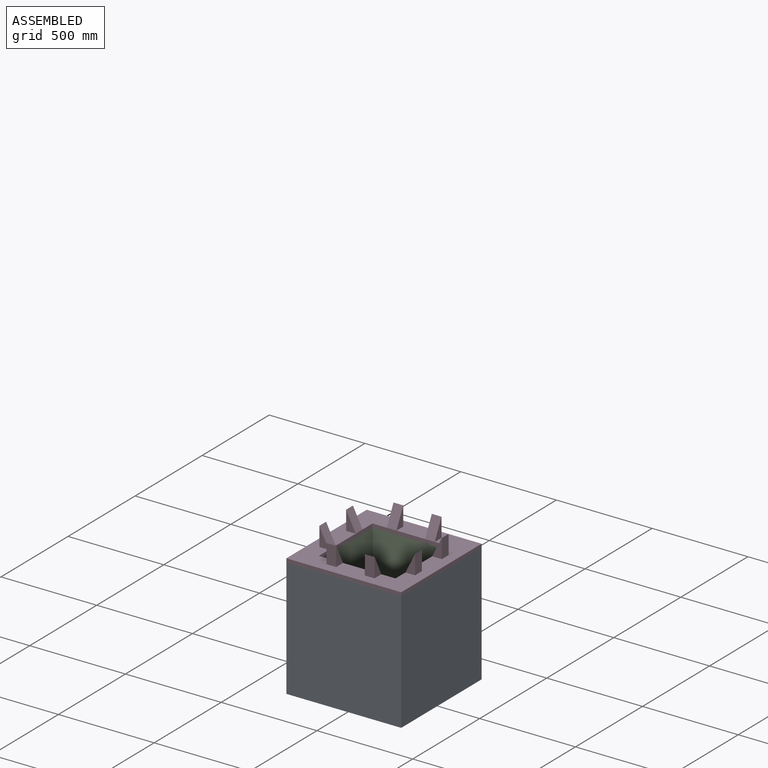
[diagram: assembled view]
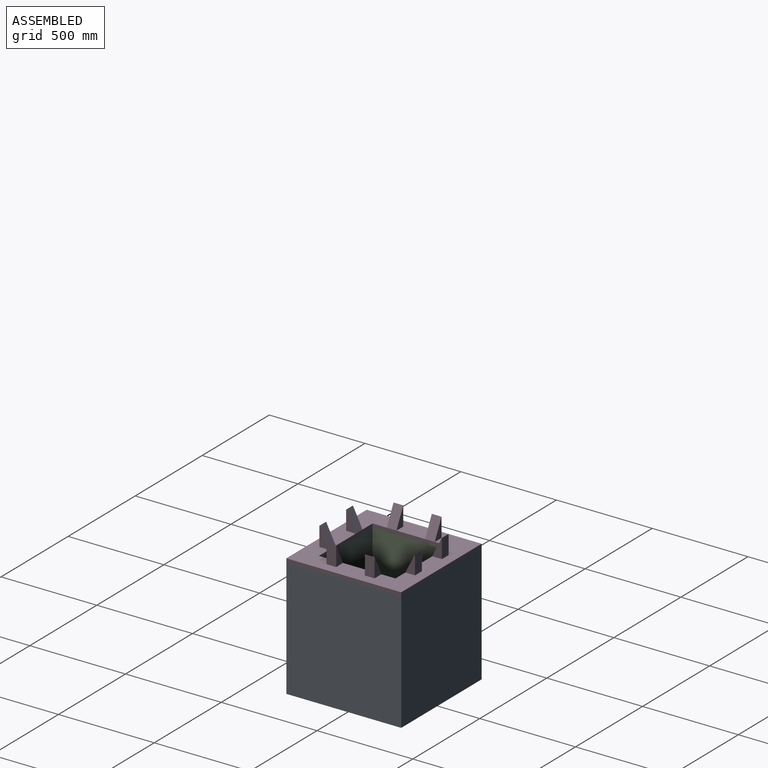
[diagram: assembled view, second angle]
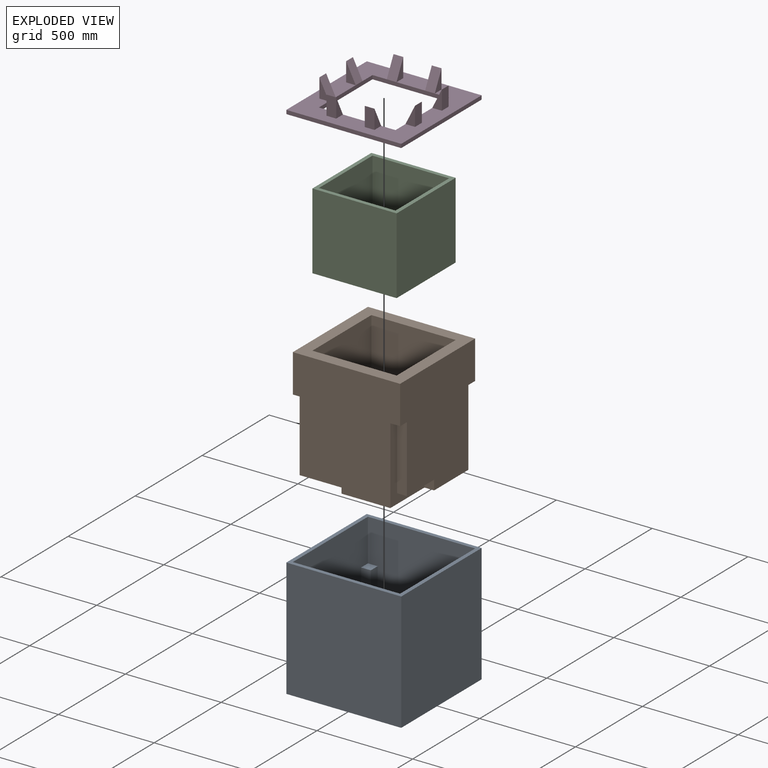
[diagram: exploded view]
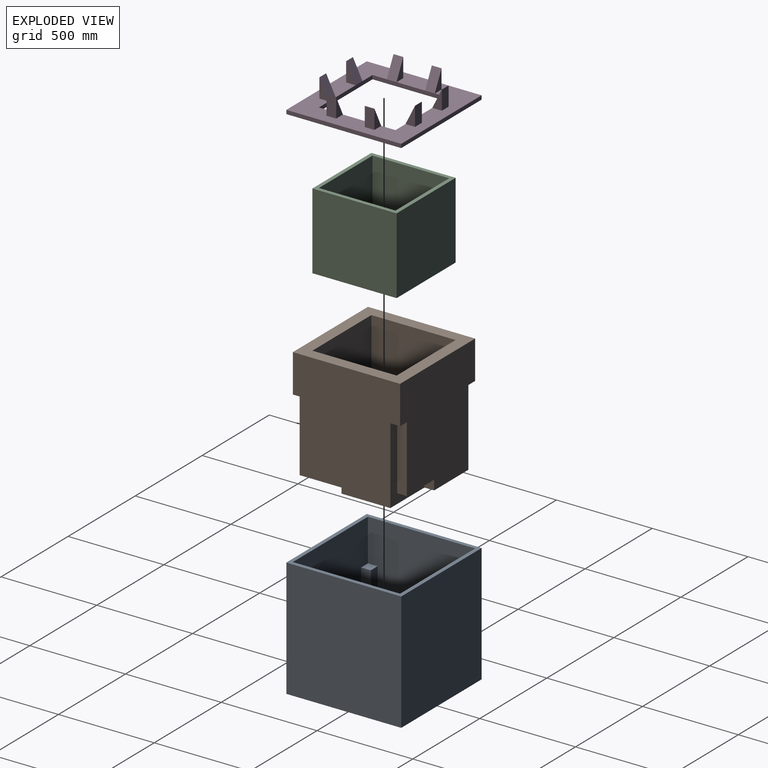
[diagram: exploded view, second angle]
ASSEMBLY  parts=4 mates=3
PART A: 51 faces, bbox 600x600x620 mm
  f0: plane 600x560mm, normal (1,0,0), area 287069.4mm2, adj f2,f3,f5,f10,f34,f38,f39,f47
  f1: plane 600x560mm, normal (-1,0,0), area 287069.4mm2, adj f2,f3,f5,f10,f32,f41,f42,f44
  f2: plane 600x560mm, normal (0,-1,0), area 287069.4mm2, adj f0,f1,f3,f10,f31,f33,f37,f43
  f3: plane 560x560mm, normal (0,0,1), area 241342.1mm2, adj f0,f1,f2,f5,f12,f13,f14,f15
  f4: plane 600x600mm, normal (0,0,-1), area 360000mm2, adj f6,f7,f8,f9
  f5: plane 600x560mm, normal (0,1,0), area 287069.4mm2, adj f0,f1,f3,f10,f35,f36,f40,f46
  f6: plane 620x600mm, normal (0,-1,0), area 372000mm2, adj f4,f7,f9,f10
  f7: plane 620x600mm, normal (1,0,0), area 372000mm2, adj f4,f6,f8,f10
  f8: plane 620x600mm, normal (0,1,0), area 372000mm2, adj f4,f7,f9,f10
  f9: plane 620x600mm, normal (-1,0,0), area 372000mm2, adj f4,f6,f8,f10
  f10: plane 600x600mm, normal (0,0,1), area 46400mm2, adj f0,f1,f2,f5,f6,f7,f8,f9
  f11: plane 101.6x50.8mm, normal (0,0,1), area 5161.3mm2, adj f12,f13,f14,f15
  f12: plane 200x50.8mm, normal (-1,0,0), area 10160mm2, adj f3,f11,f13,f15
  f13: plane 200x101.6mm, normal (0,-1,0), area 20320mm2, adj f3,f11,f12,f14
  f14: plane 200x50.8mm, normal (1,0,0), area 10160mm2, adj f3,f11,f13,f15
  f15: plane 200x101.6mm, normal (0,1,0), area 20320mm2, adj f3,f11,f12,f14
  f16: plane 101.6x50.8mm, normal (0,0,1), area 5161.3mm2, adj f17,f18,f19,f20
  f17: plane 200x50.8mm, normal (0,1,0), area 10160mm2, adj f3,f16,f18,f20
  f18: plane 200x101.6mm, normal (-1,0,0), area 20320mm2, adj f3,f16,f17,f19
  f19: plane 200x50.8mm, normal (0,-1,0), area 10160mm2, adj f3,f16,f18,f20
  f20: plane 200x101.6mm, normal (1,0,0), area 20320mm2, adj f3,f16,f17,f19
  f21: plane 101.6x50.8mm, normal (0,0,1), area 5161.3mm2, adj f22,f23,f24,f25
  f22: plane 200x101.6mm, normal (0,1,0), area 20320mm2, adj f3,f21,f23,f25
  f23: plane 200x50.8mm, normal (-1,0,0), area 10160mm2, adj f3,f21,f22,f24
  f24: plane 200x101.6mm, normal (0,-1,0), area 20320mm2, adj f3,f21,f23,f25
  f25: plane 200x50.8mm, normal (1,0,0), area 10160mm2, adj f3,f21,f22,f24
  f26: plane 101.6x50.8mm, normal (0,0,1), area 5161.3mm2, adj f27,f28,f29,f30
  f27: plane 200x101.6mm, normal (1,0,0), area 20320mm2, adj f3,f26,f28,f30
  f28: plane 200x50.8mm, normal (0,1,0), area 10160mm2, adj f3,f26,f27,f29
  f29: plane 200x101.6mm, normal (-1,0,0), area 20320mm2, adj f3,f26,f28,f30
  f30: plane 200x50.8mm, normal (0,-1,0), area 10160mm2, adj f3,f26,f27,f29
  f31: plane 50.8x50.8mm, normal (-1,0,0), area 2580.6mm2, adj f2,f3,f32,f33
  f32: plane 380x254mm, normal (0,-1,0), area 29626.6mm2, adj f1,f3,f31,f33,f43,f44
  f33: plane 203.2x50.8mm, normal (0,0,1), area 10322.6mm2, adj f2,f31,f32,f43
  f34: plane 380x254mm, normal (0,1,0), area 29626.6mm2, adj f0,f3,f35,f36,f49,f50
  f35: plane 50.8x50.8mm, normal (1,0,0), area 2580.6mm2, adj f3,f5,f34,f36
  f36: plane 203.2x50.8mm, normal (0,0,1), area 10322.6mm2, adj f5,f34,f35,f49
  f37: plane 380x254mm, normal (1,0,0), area 29626.6mm2, adj f2,f3,f38,f39,f47,f48
  f38: plane 50.8x50.8mm, normal (0,-1,0), area 2580.6mm2, adj f0,f3,f37,f39
  f39: plane 203.2x50.8mm, normal (0,0,1), area 10322.6mm2, adj f0,f37,f38,f47
  f40: plane 380x254mm, normal (-1,0,0), area 29626.6mm2, adj f3,f5,f41,f42,f45,f46
  f41: plane 50.8x50.8mm, normal (0,1,0), area 2580.6mm2, adj f1,f3,f40,f42
  f42: plane 203.2x50.8mm, normal (0,0,1), area 10322.6mm2, adj f1,f40,f41,f45
  f43: plane 329.2x50.8mm, normal (-1,0,0), area 16723.4mm2, adj f2,f32,f33,f44
  f44: plane 50.8x50.8mm, normal (0,0,1), area 2580.6mm2, adj f1,f2,f32,f43
  f45: plane 329.2x50.8mm, normal (0,1,0), area 16723.4mm2, adj f1,f40,f42,f46
  f46: plane 50.8x50.8mm, normal (0,0,1), area 2580.6mm2, adj f1,f5,f40,f45
  f47: plane 329.2x50.8mm, normal (0,-1,0), area 16723.4mm2, adj f0,f37,f39,f48
  f48: plane 50.8x50.8mm, normal (0,0,1), area 2580.6mm2, adj f0,f2,f37,f47
  f49: plane 329.2x50.8mm, normal (1,0,0), area 16723.4mm2, adj f5,f34,f36,f50
  f50: plane 50.8x50.8mm, normal (0,0,1), area 2580.6mm2, adj f0,f5,f34,f49
PART B: 47 faces, bbox 560x560x600 mm
  f0: plane 200x101.6mm, normal (0,-1,0), area 20320mm2, adj f1,f27,f28,f41
  f1: plane 200x50.8mm, normal (-1,0,0), area 10160mm2, adj f0,f2,f28,f41
  f2: plane 200x101.6mm, normal (0,1,0), area 20320mm2, adj f1,f27,f28,f41
  f3: plane 200x101.6mm, normal (-1,0,0), area 20320mm2, adj f4,f23,f28,f41
  f4: plane 200x50.8mm, normal (0,1,0), area 10160mm2, adj f3,f5,f28,f41
  f5: plane 200x101.6mm, normal (1,0,0), area 20320mm2, adj f4,f23,f28,f41
  f6: plane 200x50.8mm, normal (-1,0,0), area 10160mm2, adj f7,f24,f28,f41
  f7: plane 200x101.6mm, normal (0,1,0), area 20320mm2, adj f6,f8,f28,f41
  f8: plane 200x50.8mm, normal (1,0,0), area 10160mm2, adj f7,f24,f28,f41
  f9: plane 200x50.8mm, normal (0,1,0), area 10160mm2, adj f10,f25,f28,f41
  f10: plane 200x101.6mm, normal (1,0,0), area 20320mm2, adj f9,f11,f28,f41
  f11: plane 200x50.8mm, normal (0,-1,0), area 10160mm2, adj f10,f25,f28,f41
  f12: plane 400x254mm, normal (1,0,0), area 30642.6mm2, adj f13,f26,f28,f29,f32,f42
  f13: plane 50.8x50.8mm, normal (0,-1,0), area 2580.6mm2, adj f12,f14,f28,f29
  f14: plane 600x560mm, normal (1,0,0), area 285037.4mm2, adj f13,f15,f17,f26,f28,f29,f32,f42
  f15: plane 400x254mm, normal (0,1,0), area 30642.6mm2, adj f14,f16,f28,f33,f40,f46
  f16: plane 50.8x50.8mm, normal (1,0,0), area 2580.6mm2, adj f15,f17,f28,f40
  f17: plane 600x560mm, normal (0,1,0), area 285037.4mm2, adj f14,f16,f18,f20,f28,f33,f40,f43
  f18: plane 400x254mm, normal (-1,0,0), area 30642.6mm2, adj f17,f19,f28,f30,f34,f43
  f19: plane 50.8x50.8mm, normal (0,1,0), area 2580.6mm2, adj f18,f20,f28,f30
  f20: plane 600x560mm, normal (-1,0,0), area 285037.4mm2, adj f17,f19,f21,f26,f28,f30,f34,f43
  f21: plane 400x254mm, normal (0,-1,0), area 30642.6mm2, adj f20,f22,f28,f31,f35,f44
  f22: plane 50.8x50.8mm, normal (-1,0,0), area 2580.6mm2, adj f21,f26,f28,f31
  f23: plane 200x50.8mm, normal (0,-1,0), area 10160mm2, adj f3,f5,f28,f41
  f24: plane 200x101.6mm, normal (0,-1,0), area 20320mm2, adj f6,f8,f28,f41
  f25: plane 200x101.6mm, normal (-1,0,0), area 20320mm2, adj f9,f11,f28,f41
  f26: plane 600x560mm, normal (0,-1,0), area 285037.4mm2, adj f12,f14,f20,f22,f28,f31,f35,f42
  f27: plane 200x50.8mm, normal (1,0,0), area 10160mm2, adj f0,f2,f28,f41
  f28: plane 560x560mm, normal (0,0,-1), area 241342.1mm2, adj f0,f1,f2,f3,f4,f5,f6,f7
  f29: plane 203.2x50.8mm, normal (0,0,-1), area 10322.6mm2, adj f12,f13,f14,f32
  f30: plane 203.2x50.8mm, normal (0,0,-1), area 10322.6mm2, adj f18,f19,f20,f34
  f31: plane 203.2x50.8mm, normal (0,0,-1), area 10322.6mm2, adj f21,f22,f26,f35
  f32: plane 349.2x50.8mm, normal (0,-1,0), area 17739.4mm2, adj f12,f14,f29,f42
  f33: plane 349.2x50.8mm, normal (1,0,0), area 17739.4mm2, adj f15,f17,f40,f46
  f34: plane 349.2x50.8mm, normal (0,1,0), area 17739.4mm2, adj f18,f20,f30,f43
  f35: plane 349.2x50.8mm, normal (-1,0,0), area 17739.4mm2, adj f21,f26,f31,f44
  f36: plane 440x400mm, normal (-1,0,0), area 176000mm2, adj f37,f39,f41,f45
  f37: plane 440x400mm, normal (0,1,0), area 176000mm2, adj f36,f38,f41,f45
  f38: plane 440x400mm, normal (1,0,0), area 176000mm2, adj f37,f39,f41,f45
  f39: plane 440x400mm, normal (0,-1,0), area 176000mm2, adj f36,f38,f41,f45
  f40: plane 203.2x50.8mm, normal (0,0,-1), area 10322.6mm2, adj f15,f16,f17,f33
  f41: plane 440x440mm, normal (0,0,1), area 172954.9mm2, adj f0,f1,f2,f3,f4,f5,f6,f7
  f42: plane 50.8x50.8mm, normal (0,0,-1), area 2580.6mm2, adj f12,f14,f26,f32
  f43: plane 50.8x50.8mm, normal (0,0,-1), area 2580.6mm2, adj f17,f18,f20,f34
  f44: plane 50.8x50.8mm, normal (0,0,-1), area 2580.6mm2, adj f20,f21,f26,f35
  f45: plane 560x560mm, normal (0,0,1), area 120000mm2, adj f14,f17,f20,f26,f36,f37,f38,f39
  f46: plane 50.8x50.8mm, normal (0,0,-1), area 2580.6mm2, adj f14,f15,f17,f33
PART C: 11 faces, bbox 440x440x400 mm
  f0: plane 440x440mm, normal (0,0,-1), area 193600mm2, adj f5,f6,f7,f8
  f1: plane 400x380mm, normal (1,0,0), area 152000mm2, adj f2,f4,f9,f10
  f2: plane 400x380mm, normal (0,1,0), area 152000mm2, adj f1,f3,f9,f10
  f3: plane 400x380mm, normal (-1,0,0), area 152000mm2, adj f2,f4,f9,f10
  f4: plane 400x380mm, normal (0,-1,0), area 152000mm2, adj f1,f3,f9,f10
  f5: plane 440x400mm, normal (-1,0,0), area 176000mm2, adj f0,f6,f8,f9
  f6: plane 440x400mm, normal (0,-1,0), area 176000mm2, adj f0,f5,f7,f9
  f7: plane 440x400mm, normal (1,0,0), area 176000mm2, adj f0,f6,f8,f9
  f8: plane 440x400mm, normal (0,1,0), area 176000mm2, adj f0,f5,f7,f9
  f9: plane 440x440mm, normal (0,0,1), area 33600mm2, adj f1,f2,f3,f4,f5,f6,f7,f8
  f10: plane 400x400mm, normal (0,0,1), area 160000mm2, adj f1,f2,f3,f4
PART D: 42 faces, bbox 600x600x120 mm
  f0: plane 400x20mm, normal (0,-1,0), area 8000mm2, adj f1,f3,f8,f9,f19,f23
  f1: plane 400x20mm, normal (-1,0,0), area 8000mm2, adj f0,f2,f8,f9,f27,f33
  f2: plane 400x20mm, normal (0,1,0), area 8000mm2, adj f1,f3,f8,f9,f35,f40
  f3: plane 400x20mm, normal (1,0,0), area 8000mm2, adj f0,f2,f8,f9,f11,f17
  f4: plane 600x20mm, normal (0,1,0), area 12000mm2, adj f5,f7,f8,f9
  f5: plane 600x20mm, normal (-1,0,0), area 12000mm2, adj f4,f6,f8,f9
  f6: plane 600x20mm, normal (0,-1,0), area 12000mm2, adj f5,f7,f8,f9
  f7: plane 600x20mm, normal (1,0,0), area 12000mm2, adj f4,f6,f8,f9
  f8: plane 600x600mm, normal (0,0,1), area 179680mm2, adj f0,f1,f2,f3,f4,f5,f6,f7
  f9: plane 600x600mm, normal (0,0,-1), area 200000mm2, adj f0,f1,f2,f3,f4,f5,f6,f7
  f10: plane 100x50.8mm, normal (-1,0,0), area 5080mm2, adj f8,f11,f12,f13
  f11: plane 100x50.8mm, normal (0.89,0,0.45), area 5679.6mm2, adj f3,f10,f12,f13
  f12: plane 100x50mm, normal (0,-1,0), area 2500mm2, adj f8,f10,f11
  f13: plane 100x50mm, normal (0,1,0), area 2500mm2, adj f8,f10,f11
  f14: plane 100x50mm, normal (0,-1,0), area 2500mm2, adj f8,f15,f17
  f15: plane 100x50.8mm, normal (-1,0,0), area 5080mm2, adj f8,f14,f16,f17
  f16: plane 100x50mm, normal (0,1,0), area 2500mm2, adj f8,f15,f17
  f17: plane 100x50.8mm, normal (0.89,0,0.45), area 5679.6mm2, adj f3,f14,f15,f16
  f18: plane 100x50.8mm, normal (0,1,0), area 5080mm2, adj f8,f19,f20,f21
  f19: plane 100x50.8mm, normal (0,-0.89,0.45), area 5679.6mm2, adj f0,f18,f20,f21
  f20: plane 100x50mm, normal (-1,0,0), area 2500mm2, adj f8,f18,f19
  f21: plane 100x50mm, normal (1,0,0), area 2500mm2, adj f8,f18,f19
  f22: plane 100x50.8mm, normal (0,1,0), area 5080mm2, adj f8,f23,f24,f25
  f23: plane 100x50.8mm, normal (0,-0.89,0.45), area 5679.6mm2, adj f0,f22,f24,f25
  f24: plane 100x50mm, normal (-1,0,0), area 2500mm2, adj f8,f22,f23
  f25: plane 100x50mm, normal (1,0,0), area 2500mm2, adj f8,f22,f23
  f26: plane 100x50.8mm, normal (1,0,0), area 5080mm2, adj f8,f27,f28,f29
  f27: plane 100x50.8mm, normal (-0.89,0,0.45), area 5679.6mm2, adj f1,f26,f28,f29
  f28: plane 100x50mm, normal (0,1,0), area 2500mm2, adj f8,f26,f27
  f29: plane 100x50mm, normal (0,-1,0), area 2500mm2, adj f8,f26,f27
  f30: plane 100x50mm, normal (0,1,0), area 2500mm2, adj f8,f31,f33
  f31: plane 100x50.8mm, normal (1,0,0), area 5080mm2, adj f8,f30,f32,f33
  f32: plane 100x50mm, normal (0,-1,0), area 2500mm2, adj f8,f31,f33
  f33: plane 100x50.8mm, normal (-0.89,0,0.45), area 5679.6mm2, adj f1,f30,f31,f32
  f34: plane 100x50.8mm, normal (0,-1,0), area 5080mm2, adj f8,f35,f36,f37
  f35: plane 100x50.8mm, normal (0,0.89,0.45), area 5679.6mm2, adj f2,f34,f36,f37
  f36: plane 100x50mm, normal (1,0,0), area 2500mm2, adj f8,f34,f35
  f37: plane 100x50mm, normal (-1,0,0), area 2500mm2, adj f8,f34,f35
  f38: plane 100x50mm, normal (1,0,0), area 2500mm2, adj f8,f40,f41
  f39: plane 100x50mm, normal (-1,0,0), area 2500mm2, adj f8,f40,f41
  f40: plane 100x50.8mm, normal (0,0.89,0.45), area 5679.6mm2, adj f2,f38,f39,f41
  f41: plane 100x50.8mm, normal (0,-1,0), area 5080mm2, adj f8,f38,f39,f40
PLACE A t=(0.19,0.15,126.54)mm
PLACE B t=(-65.56,-9.74,197.34)mm
PLACE C t=(18.02,-0.45,346.54)mm
PLACE D t=(58.03,13.93,746.54)mm
MATE fastened C.f0 <-> B.f41  axis (0,0,-1) through (0.19,0.15,346.54)mm
MATE fastened D.f9 <-> A.f10  axis (0,0,-1) through (-299.81,-299.85,746.54)mm
MATE fastened B.f28 <-> A.f3  axis (0,0,-1) through (0.19,0.15,146.54)mm
